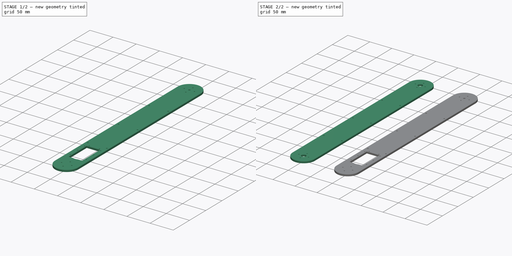
[diagram: build sequence overview — one tinted view per stage of 2, left to right]
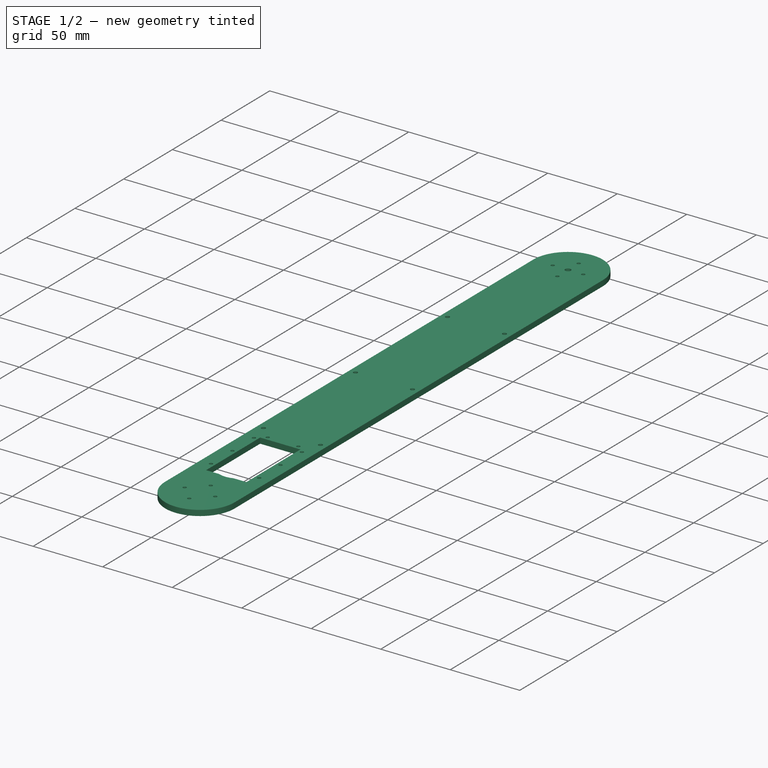
[diagram: stage 1 of 2 — iso view after this stage's code; geometry added in this stage tinted green]
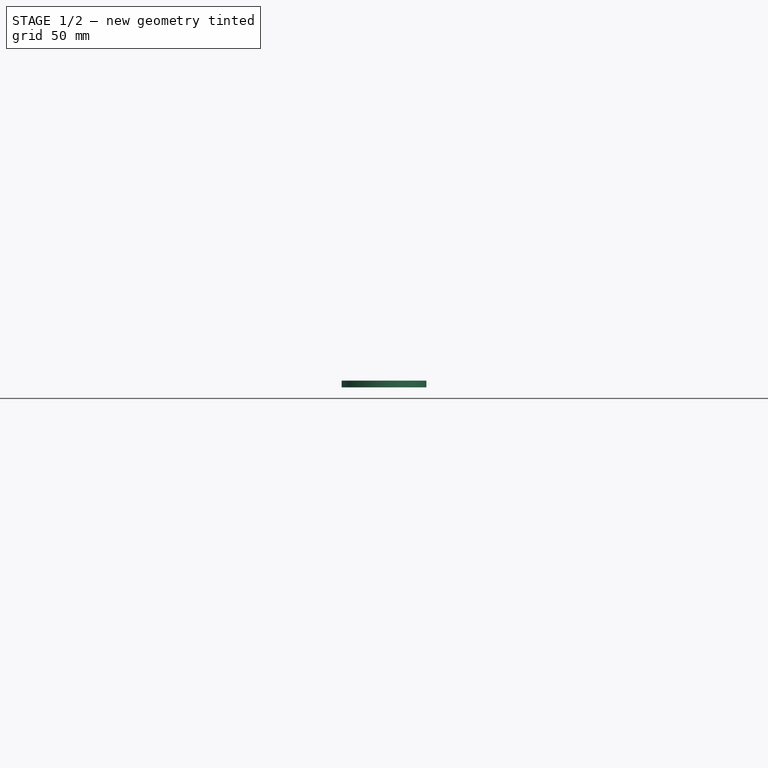
[diagram: stage 1 of 2 — front view after this stage's code; geometry added in this stage tinted green]
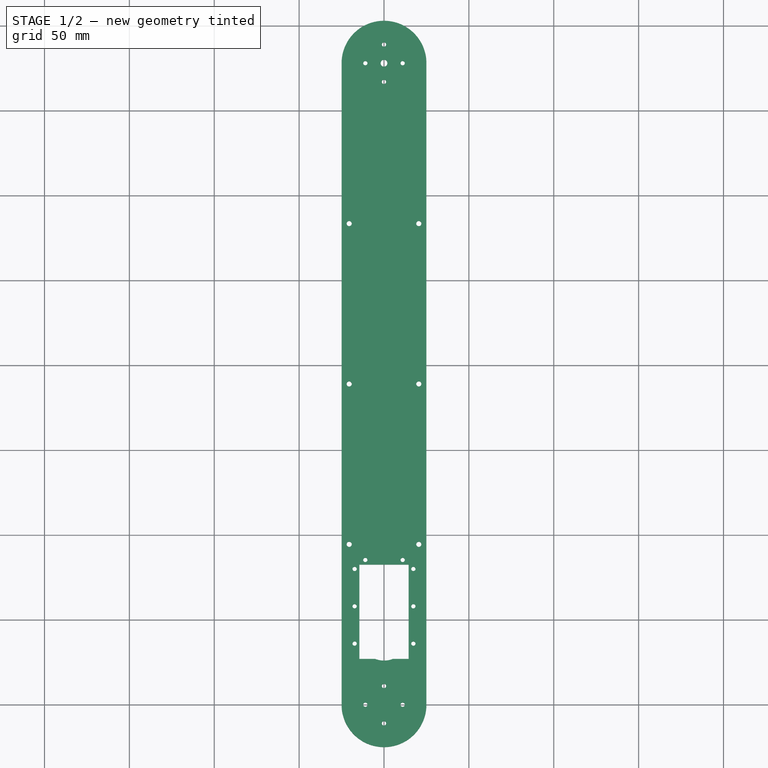
[diagram: stage 1 of 2 — top view after this stage's code; geometry added in this stage tinted green]
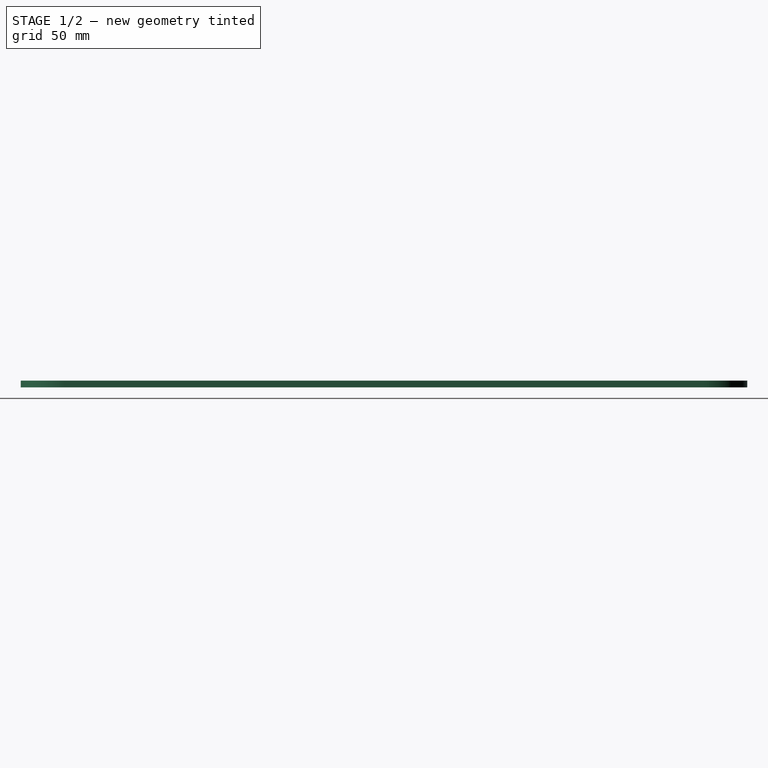
[diagram: stage 1 of 2 — right view after this stage's code; geometry added in this stage tinted green]
FCSTD DOCUMENT  (FreeCAD 1.0R39109 (Git))
Label: arm2
License: All rights reserved
LicenseURL: https://en.wikipedia.org/wiki/All_rights_reserved
objects: Sketcher::SketchObject×6, PartDesign::Body×3, PartDesign::Pad×2, PartDesign::Pocket×2, App::Part×1
note: 27 computed .brp shape members not serialized (recipe doc carries the construction recipe); baked Part::Feature solids carry a one-line shape summary decoded from their .brp

FEATURE [Sketcher::SketchObject] Sketch
  ArcFitTolerance = 1e-06
  AttachmentSupport = -> [XY_Plane]
  FullyConstrained = false
  MakeInternals = false
  MapMode = 5
  sketch-geometry (59):
    g0: LineSegment [constr] StartX=340.101 StartY=0 StartZ=0 EndX=340.101 EndY=-40 EndZ=0
    g1: Circle [constr] CenterX=340.101 CenterY=-20 CenterZ=0 NormalX=0 NormalY=0 NormalZ=1 AngleXU=0 Radius=14
    g2: LineSegment [constr] StartX=340.101 StartY=-20 StartZ=0 EndX=365.101 EndY=-20 EndZ=0
    g3: LineSegment [constr] StartX=340.101 StartY=-20 StartZ=0 EndX=315.101 EndY=-20 EndZ=0
    g4: ArcOfCircle CenterX=340.101 CenterY=-20 CenterZ=0 NormalX=0 NormalY=0 NormalZ=1 AngleXU=0 Radius=25 StartAngle=3.14159 EndAngle=6.28319
    g5: Circle CenterX=340.101 CenterY=-20 CenterZ=0 NormalX=0 NormalY=0 NormalZ=1 AngleXU=0 Radius=5
    g6: Circle CenterX=340.101 CenterY=-20 CenterZ=0 NormalX=0 NormalY=0 NormalZ=1 AngleXU=0 Radius=2
    g7: LineSegment [constr] StartX=120.063 StartY=3.7e-05 StartZ=0 EndX=120.063 EndY=-40 EndZ=0
    g8: Circle [constr] CenterX=120.063 CenterY=-20 CenterZ=0 NormalX=0 NormalY=0 NormalZ=1 AngleXU=0 Radius=14
    g9: LineSegment [constr] StartX=120.063 StartY=-20 StartZ=0 EndX=95.0632 EndY=-20 EndZ=0
    g10: ArcOfCircle CenterX=120.063 CenterY=-20 CenterZ=0 NormalX=0 NormalY=0 NormalZ=1 AngleXU=0 Radius=25 StartAngle=3.14159 EndAngle=6.28319
    g11: LineSegment [constr] StartX=120.063 StartY=-20 StartZ=0 EndX=145.063 EndY=-20 EndZ=0
    g12: Circle [constr] CenterX=120.063 CenterY=-20.0003 CenterZ=0 NormalX=0 NormalY=0 NormalZ=1 AngleXU=0 Radius=11
    g13: Circle CenterX=131.063 CenterY=-20 CenterZ=0 NormalX=0 NormalY=0 NormalZ=1 AngleXU=0 Radius=1.25
    g14: Circle CenterX=120.063 CenterY=-9.00027 CenterZ=0 NormalX=0 NormalY=0 NormalZ=1 AngleXU=0 Radius=1.25
    g15: Circle CenterX=109.063 CenterY=-20 CenterZ=0 NormalX=0 NormalY=0 NormalZ=1 AngleXU=0 Radius=1.25
    g16: Circle CenterX=120.063 CenterY=-30.9997 CenterZ=0 NormalX=0 NormalY=0 NormalZ=1 AngleXU=0 Radius=1.25
    g17: Circle CenterX=351.101 CenterY=-20 CenterZ=0 NormalX=0 NormalY=0 NormalZ=1 AngleXU=0 Radius=1.25
    g18: Circle [constr] CenterX=340.101 CenterY=-19.9997 CenterZ=0 NormalX=0 NormalY=0 NormalZ=1 AngleXU=0 Radius=11
    g19: Circle CenterX=340.101 CenterY=-9.0003 CenterZ=0 NormalX=0 NormalY=0 NormalZ=1 AngleXU=0 Radius=1.25
    g20: Circle CenterX=329.101 CenterY=-20 CenterZ=0 NormalX=0 NormalY=0 NormalZ=1 AngleXU=0 Radius=1.25
    g21: Circle CenterX=340.101 CenterY=-30.9997 CenterZ=0 NormalX=0 NormalY=0 NormalZ=1 AngleXU=0 Radius=1.25
    g22: Circle [constr] CenterX=120.063 CenterY=-20 CenterZ=0 NormalX=0 NormalY=0 NormalZ=1 AngleXU=0 Radius=25
    g23: LineSegment [constr] StartX=120.063 StartY=3.7e-05 StartZ=0 EndX=120.063 EndY=5.00004 EndZ=0
    g24: Circle CenterX=120.063 CenterY=368 CenterZ=0 NormalX=0 NormalY=0 NormalZ=1 AngleXU=0 Radius=5
    g25: Circle CenterX=120.063 CenterY=368 CenterZ=0 NormalX=0 NormalY=0 NormalZ=1 AngleXU=0 Radius=2
    g26: LineSegment [constr] StartX=99.9621 StartY=78.1 StartZ=0 EndX=140.162 EndY=78.1 EndZ=0
    g27: LineSegment [constr] StartX=140.162 StartY=78.1 StartZ=0 EndX=140.162 EndY=17 EndZ=0
    g28: LineSegment [constr] StartX=120.062 StartY=72.5 StartZ=0 EndX=134.562 EndY=72.5 EndZ=0
    g29: LineSegment StartX=134.562 StartY=72.5 StartZ=0 EndX=105.562 EndY=72.5 EndZ=0
    g30: LineSegment StartX=134.562 StartY=72.5 StartZ=0 EndX=134.562 EndY=17 EndZ=0
    g31: Circle CenterX=131.062 CenterY=75.3 CenterZ=0 NormalX=0 NormalY=0 NormalZ=1 AngleXU=0 Radius=1.25
    g32: Circle CenterX=137.362 CenterY=48 CenterZ=0 NormalX=0 NormalY=0 NormalZ=1 AngleXU=0 Radius=1.25
    g33: Circle CenterX=137.362 CenterY=70 CenterZ=0 NormalX=0 NormalY=0 NormalZ=1 AngleXU=0 Radius=1.25
    g34: LineSegment [constr] StartX=140.162 StartY=17 StartZ=0 EndX=134.562 EndY=17 EndZ=0
    g35: Circle CenterX=137.362 CenterY=26 CenterZ=0 NormalX=0 NormalY=0 NormalZ=1 AngleXU=0 Radius=1.25
    g36: LineSegment StartX=125.258 StartY=17 StartZ=0 EndX=134.562 EndY=17 EndZ=0
    g37: ArcOfCircle CenterX=120.062 CenterY=30 CenterZ=0 NormalX=0 NormalY=0 NormalZ=1 AngleXU=0 Radius=14 StartAngle=4.33214 EndAngle=5.09264
    g38: Circle [constr] CenterX=120.062 CenterY=30 CenterZ=0 NormalX=0 NormalY=0 NormalZ=1 AngleXU=0 Radius=14
    g39: LineSegment StartX=105.562 StartY=17 StartZ=0 EndX=114.866 EndY=17 EndZ=0
    g40: LineSegment StartX=105.562 StartY=72.5 StartZ=0 EndX=105.562 EndY=17 EndZ=0
    g41: LineSegment [constr] StartX=99.9621 StartY=17 StartZ=0 EndX=105.562 EndY=17 EndZ=0
    g42: LineSegment [constr] StartX=99.9621 StartY=17 StartZ=0 EndX=99.9621 EndY=78.1 EndZ=0
    g43: Circle CenterX=102.762 CenterY=26 CenterZ=0 NormalX=0 NormalY=0 NormalZ=1 AngleXU=0 Radius=1.25
    g44: Circle CenterX=102.762 CenterY=48 CenterZ=0 NormalX=0 NormalY=0 NormalZ=1 AngleXU=0 Radius=1.25
    g45: Circle CenterX=102.762 CenterY=70 CenterZ=0 NormalX=0 NormalY=0 NormalZ=1 AngleXU=0 Radius=1.25
    g46: Circle CenterX=109.062 CenterY=75.3 CenterZ=0 NormalX=0 NormalY=0 NormalZ=1 AngleXU=0 Radius=1.25
    g47: Circle CenterX=340.101 CenterY=368 CenterZ=0 NormalX=0 NormalY=0 NormalZ=1 AngleXU=0 Radius=5
    g48: Circle CenterX=340.101 CenterY=368 CenterZ=0 NormalX=0 NormalY=0 NormalZ=1 AngleXU=0 Radius=2
    g49: ArcOfCircle CenterX=340.101 CenterY=368 CenterZ=0 NormalX=0 NormalY=0 NormalZ=1 AngleXU=0 Radius=25 StartAngle=0 EndAngle=3.14159
    g50: LineSegment [constr] StartX=340.101 StartY=368 StartZ=0 EndX=315.101 EndY=368 EndZ=0
    g51: LineSegment [constr] StartX=340.101 StartY=368 StartZ=0 EndX=365.101 EndY=368 EndZ=0
    g52: LineSegment StartX=315.101 StartY=-20 StartZ=0 EndX=315.101 EndY=368 EndZ=0
    g53: LineSegment StartX=365.101 StartY=-20 StartZ=0 EndX=365.101 EndY=368 EndZ=0
    g54: ArcOfCircle CenterX=120.063 CenterY=368 CenterZ=0 NormalX=0 NormalY=0 NormalZ=1 AngleXU=0 Radius=25 StartAngle=0 EndAngle=3.14159
    g55: LineSegment [constr] StartX=120.063 StartY=368 StartZ=0 EndX=95.0632 EndY=368 EndZ=0
    g56: LineSegment [constr] StartX=120.063 StartY=368 StartZ=0 EndX=145.063 EndY=368 EndZ=0
    g57: LineSegment StartX=95.0632 StartY=-20 StartZ=0 EndX=95.0632 EndY=368 EndZ=0
    g58: LineSegment StartX=145.063 StartY=-20 StartZ=0 EndX=145.063 EndY=368 EndZ=0
  constraints (107):
    c: Vertical(g0)
    c: Diameter(g1) = 28
    c: Symmetric(g0,g0,g1)
    c: Coincident(g2,g1)
    c: Horizontal(g2)
    c: Coincident(g3,g1)
    c: PointOnObject(g3,g4)
    c: Horizontal(g3)
    c: Coincident(g4,g2)
    c: PointOnObject(g4,g3)
    c: Diameter(g5) = 10
    c: Coincident(g5,g4)
    c: Diameter(g6) = 4
    c: Coincident(g6,g1)
    c: Vertical(g7)
    c: Diameter(g8) = 28
    c: Symmetric(g7,g7,g8)
    c: Coincident(g9,g8)
    c: PointOnObject(g9,g10)
    c: Horizontal(g9)
    c: PointOnObject(g10,g9)
    c: Horizontal(g11)
    c: Diameter(g12) = 22
    c: Diameter(g14) = 2.5
    c: Diameter(g15) = 2.5
    c: Diameter(g16) = 2.5
    c: Diameter(g13) = 2.5
    c: Diameter(g18) = 22
    c: Diameter(g19) = 2.5
    c: Diameter(g20) = 2.5
    c: Diameter(g21) = 2.5
    c: Diameter(g17) = 2.5
    c: Coincident(g22,g10)
    c: Equal(g22,g10)
    c: Coincident(g23,g7)
    c: PointOnObject(g23,g22)
    c: Vertical(g23)
    c: Diameter(g25) = 4
    c: Coincident(g26,g27)
    c: Coincident(g42,g26)
    c: Horizontal(g26)
    c: Vertical(g27)
    c: Vertical(g42)
    c: Distance(g27,g42) = 40.2
    c: Distance(g26,g42) = 61.1
    c: Diameter(g37) = 28
    c: Horizontal(g28)
    c: Coincident(g29,g28)
    c: Horizontal(g29)
    c: Coincident(g40,g29)
    c: Vertical(g40)
    c: Coincident(g30,g28)
    c: Vertical(g30)
    c: Diameter(g31) = 2.5
    c: Equal(g31,g46)
    c: Equal(g31,g35)
    c: Equal(g31,g43)
    c: Equal(g31,g44)
    c: Equal(g31,g45)
    c: Equal(g31,g33)
    c: Equal(g31,g32)
    c: Coincident(g38,g37)
    c: PointOnObject(g37,g38)
    c: Coincident(g34,g27)
    c: Coincident(g34,g30)
    c: Horizontal(g34)
    c: Coincident(g36,g37)
    c: Coincident(g36,g30)
    c: Horizontal(g36)
    c: Coincident(g39,g40)
    c: Coincident(g39,g37)
    c: Horizontal(g39)
    c: Horizontal(g41)
    c: Diameter(g48) = 4
    c: DistanceY(g18,g47) = 388
    c: Diameter(g49) = 50
    c: Coincident(g49,g47)
    c: Coincident(g50,g48)
    c: Horizontal(g50)
    c: Coincident(g51,g47)
    c: Horizontal(g51)
    c: Coincident(g49,g50)
    c: Coincident(g49,g51)
    c: Coincident(g52,g4)
    c: Coincident(g52,g49)
    c: Vertical(g52)
    c: Coincident(g53,g2)
    c: Coincident(g53,g49)
    c: Vertical(g53)
    c: Diameter(g54) = 50
    c: Coincident(g54,g24)
    c: Coincident(g55,g25)
    c: Horizontal(g55)
    c: Coincident(g56,g24)
    c: Horizontal(g56)
    c: Coincident(g54,g55)
    c: Coincident(g54,g56)
    c: Coincident(g57,g10)
    c: Coincident(g57,g54)
    c: Vertical(g57)
    c: Tangent(g57,g22)
    c: Coincident(g58,g10)
    c: Coincident(g58,g54)
    c: Vertical(g58)
    c: Tangent(g58,g22)
    c: DistanceY(g11,g24) = 388
    c: DistanceY(g37,g24) = 338
FEATURE [PartDesign::Body] Body
  AllowCompound = false
  Group = -> [Sketch]
  Origin = -> Origin
FEATURE [Sketcher::SketchObject] Sketch001
  ArcFitTolerance = 1e-06
  AttachmentSupport = -> [XY_Plane002]
  FullyConstrained = false
  MakeInternals = false
  MapMode = 5
  sketch-geometry (47):
    g0: LineSegment [constr] StartX=120.063 StartY=3.7e-05 StartZ=0 EndX=120.063 EndY=5.00004 EndZ=0
    g1: LineSegment [constr] StartX=0 StartY=0 StartZ=0 EndX=100 EndY=0 EndZ=0
    g2: Circle CenterX=100 CenterY=378 CenterZ=0 NormalX=0 NormalY=0 NormalZ=1 AngleXU=0 Radius=2
    g3: LineSegment [constr] StartX=79.8989 StartY=88.1 StartZ=0 EndX=120.099 EndY=88.1 EndZ=0
    g4: LineSegment [constr] StartX=120.099 StartY=88.1 StartZ=0 EndX=120.099 EndY=27 EndZ=0
    g5: LineSegment [constr] StartX=99.9989 StartY=82.5 StartZ=0 EndX=114.499 EndY=82.5 EndZ=0
    g6: LineSegment StartX=114.499 StartY=82.5 StartZ=0 EndX=85.4989 EndY=82.5 EndZ=0
    g7: LineSegment StartX=114.499 StartY=82.5 StartZ=0 EndX=114.499 EndY=27 EndZ=0
    g8: Circle CenterX=110.999 CenterY=85.3 CenterZ=0 NormalX=0 NormalY=0 NormalZ=1 AngleXU=0 Radius=1.25
    g9: Circle CenterX=117.299 CenterY=58 CenterZ=0 NormalX=0 NormalY=0 NormalZ=1 AngleXU=0 Radius=1.25
    g10: Circle CenterX=117.299 CenterY=80 CenterZ=0 NormalX=0 NormalY=0 NormalZ=1 AngleXU=0 Radius=1.25
    g11: Circle [constr] CenterX=99.9989 CenterY=40 CenterZ=0 NormalX=0 NormalY=0 NormalZ=1 AngleXU=0 Radius=14
    g12: LineSegment StartX=85.4989 StartY=82.5 StartZ=0 EndX=85.4989 EndY=27 EndZ=0
    g13: LineSegment [constr] StartX=79.8989 StartY=27 StartZ=0 EndX=79.8989 EndY=88.1 EndZ=0
    g14: Circle CenterX=82.6989 CenterY=58 CenterZ=0 NormalX=0 NormalY=0 NormalZ=1 AngleXU=0 Radius=1.25
    g15: Circle CenterX=82.6989 CenterY=80 CenterZ=0 NormalX=0 NormalY=0 NormalZ=1 AngleXU=0 Radius=1.25
    g16: Circle CenterX=88.9989 CenterY=85.3 CenterZ=0 NormalX=0 NormalY=0 NormalZ=1 AngleXU=0 Radius=1.25
    g17: ArcOfCircle CenterX=100 CenterY=378 CenterZ=0 NormalX=0 NormalY=0 NormalZ=1 AngleXU=0 Radius=25 StartAngle=0 EndAngle=3.14159
    g18: LineSegment [constr] StartX=100 StartY=378 StartZ=0 EndX=75 EndY=378 EndZ=0
    g19: LineSegment [constr] StartX=100 StartY=378 StartZ=0 EndX=125 EndY=378 EndZ=0
    g20: Circle [constr] CenterX=100 CenterY=378 CenterZ=0 NormalX=0 NormalY=0 NormalZ=1 AngleXU=0 Radius=14
    g21: LineSegment [constr] StartX=100 StartY=378 StartZ=0 EndX=125 EndY=378 EndZ=0
    g22: Circle [constr] CenterX=100 CenterY=378 CenterZ=0 NormalX=0 NormalY=0 NormalZ=1 AngleXU=0 Radius=11
    g23: Circle CenterX=111 CenterY=378 CenterZ=0 NormalX=0 NormalY=0 NormalZ=1 AngleXU=0 Radius=1.25
    g24: Circle CenterX=100 CenterY=389 CenterZ=0 NormalX=0 NormalY=0 NormalZ=1 AngleXU=0 Radius=1.25
    g25: Circle CenterX=100 CenterY=367 CenterZ=0 NormalX=0 NormalY=0 NormalZ=1 AngleXU=0 Radius=1.25
    g26: Circle CenterX=89.0003 CenterY=378 CenterZ=0 NormalX=0 NormalY=0 NormalZ=1 AngleXU=0 Radius=1.25
    g27: LineSegment StartX=75 StartY=0 StartZ=0 EndX=75 EndY=378 EndZ=0
    g28: LineSegment StartX=125 StartY=-8.67949e-06 StartZ=0 EndX=125 EndY=378 EndZ=0
    g29: LineSegment [constr] StartX=100 StartY=20 StartZ=0 EndX=100 EndY=-20 EndZ=0
    g30: Circle [constr] CenterX=100 CenterY=0 CenterZ=0 NormalX=0 NormalY=0 NormalZ=1 AngleXU=0 Radius=14
    g31: LineSegment [constr] StartX=100 StartY=0 StartZ=0 EndX=75 EndY=0 EndZ=0
    g32: ArcOfCircle CenterX=100 CenterY=-1e-06 CenterZ=0 NormalX=0 NormalY=0 NormalZ=1 AngleXU=0 Radius=25 StartAngle=3.14159 EndAngle=6.28318
    g33: LineSegment [constr] StartX=100 StartY=0 StartZ=0 EndX=125 EndY=0 EndZ=0
    g34: Circle [constr] CenterX=100 CenterY=-0.000303 CenterZ=0 NormalX=0 NormalY=0 NormalZ=1 AngleXU=0 Radius=11
    g35: Circle CenterX=111 CenterY=0 CenterZ=0 NormalX=0 NormalY=0 NormalZ=1 AngleXU=0 Radius=1.25
    g36: Circle CenterX=100 CenterY=10.9997 CenterZ=0 NormalX=0 NormalY=0 NormalZ=1 AngleXU=0 Radius=1.25
    g37: Circle CenterX=89.0003 CenterY=0 CenterZ=0 NormalX=0 NormalY=0 NormalZ=1 AngleXU=0 Radius=1.25
    g38: Circle CenterX=100 CenterY=-10.9997 CenterZ=0 NormalX=0 NormalY=0 NormalZ=1 AngleXU=0 Radius=1.25
    g39: Circle [constr] CenterX=100 CenterY=-1e-06 CenterZ=0 NormalX=0 NormalY=0 NormalZ=1 AngleXU=0 Radius=25
    g40: LineSegment [constr] StartX=120.099 StartY=27 StartZ=0 EndX=114.499 EndY=27 EndZ=0
    g41: LineSegment StartX=105.195 StartY=27 StartZ=0 EndX=114.499 EndY=27 EndZ=0
    g42: LineSegment StartX=85.4989 StartY=27 StartZ=0 EndX=94.8028 EndY=27 EndZ=0
    g43: LineSegment [constr] StartX=79.8989 StartY=27 StartZ=0 EndX=85.4989 EndY=27 EndZ=0
    g44: Circle CenterX=82.6989 CenterY=36 CenterZ=0 NormalX=0 NormalY=0 NormalZ=1 AngleXU=0 Radius=1.25
    g45: Circle CenterX=117.299 CenterY=36 CenterZ=0 NormalX=0 NormalY=0 NormalZ=1 AngleXU=0 Radius=1.25
    g46: ArcOfCircle CenterX=99.9989 CenterY=40 CenterZ=0 NormalX=0 NormalY=0 NormalZ=1 AngleXU=0 Radius=14 StartAngle=4.33214 EndAngle=5.09264
  constraints (74):
    c: Vertical(g0)
    c: Distance(g1) = 100
    c: Coincident(g1,g-1)
    c: PointOnObject(g1,g-1)
    c: Vertical(g29)
    c: Diameter(g30) = 28
    c: Symmetric(g29,g29,g30)
    c: Coincident(g31,g30)
    c: PointOnObject(g31,g32)
    c: Horizontal(g31)
    c: PointOnObject(g32,g31)
    c: Horizontal(g33)
    c: Diameter(g34) = 22
    c: Diameter(g36) = 2.5
    c: Diameter(g37) = 2.5
    c: Diameter(g38) = 2.5
    c: Diameter(g35) = 2.5
    c: Coincident(g39,g32)
    c: Equal(g39,g32)
    c: Diameter(g2) = 4
    c: Coincident(g3,g4)
    c: Coincident(g13,g3)
    c: Horizontal(g3)
    c: Vertical(g4)
    c: Vertical(g13)
    c: Distance(g4,g13) = 40.2
    c: Distance(g3,g13) = 61.1
    c: Diameter(g46) = 28
    c: Horizontal(g5)
    c: Coincident(g6,g5)
    c: Horizontal(g6)
    c: Coincident(g12,g6)
    c: Vertical(g12)
    c: Coincident(g7,g5)
    c: Vertical(g7)
    c: Diameter(g8) = 2.5
    c: Equal(g8,g16)
    c: Equal(g8,g45)
    c: Equal(g8,g44)
    c: Equal(g8,g14)
    c: Equal(g8,g15)
    c: Equal(g8,g10)
    c: Equal(g8,g9)
    c: Coincident(g11,g46)
    c: PointOnObject(g46,g11)
    c: Coincident(g40,g4)
    c: Coincident(g40,g7)
    c: Horizontal(g40)
    c: Coincident(g41,g46)
    c: Coincident(g41,g7)
    c: Horizontal(g41)
    c: Coincident(g42,g12)
    c: Coincident(g42,g46)
    c: Horizontal(g42)
    c: Horizontal(g43)
    c: Diameter(g17) = 50
    c: Coincident(g18,g2)
    c: Horizontal(g18)
    c: Horizontal(g19)
    c: Coincident(g17,g18)
    c: Coincident(g17,g19)
    c: Diameter(g20) = 28
    c: Horizontal(g21)
    c: Diameter(g22) = 22
    c: Diameter(g24) = 2.5
    c: Diameter(g26) = 2.5
    c: Diameter(g25) = 2.5
    c: Diameter(g23) = 2.5
    c: Coincident(g27,g32)
    c: Coincident(g27,g17)
    c: Vertical(g27)
    c: Coincident(g28,g32)
    c: Coincident(g28,g21)
    c: Vertical(g28)
FEATURE [Sketcher::SketchObject] Sketch002
  ArcFitTolerance = 1e-06
  AttachmentSupport = -> [XY_Plane003]
  FullyConstrained = false
  MakeInternals = false
  MapMode = 5
  sketch-geometry (26):
    g0: Circle [constr] CenterX=340.101 CenterY=-20 CenterZ=0 NormalX=0 NormalY=0 NormalZ=1 AngleXU=0 Radius=14
    g1: Circle CenterX=340.101 CenterY=-19.9925 CenterZ=0 NormalX=0 NormalY=0 NormalZ=1 AngleXU=0 Radius=5
    g2: Circle CenterX=340.101 CenterY=-20 CenterZ=0 NormalX=0 NormalY=0 NormalZ=1 AngleXU=0 Radius=2
    g3: Circle CenterX=351.101 CenterY=-20 CenterZ=0 NormalX=0 NormalY=0 NormalZ=1 AngleXU=0 Radius=1.25
    g4: Circle [constr] CenterX=340.101 CenterY=-19.9997 CenterZ=0 NormalX=0 NormalY=0 NormalZ=1 AngleXU=0 Radius=11
    g5: Circle CenterX=340.101 CenterY=-9.0003 CenterZ=0 NormalX=0 NormalY=0 NormalZ=1 AngleXU=0 Radius=1.25
    g6: Circle CenterX=329.101 CenterY=-20 CenterZ=0 NormalX=0 NormalY=0 NormalZ=1 AngleXU=0 Radius=1.25
    g7: Circle CenterX=340.101 CenterY=-30.9997 CenterZ=0 NormalX=0 NormalY=0 NormalZ=1 AngleXU=0 Radius=1.25
    g8: Circle CenterX=340.101 CenterY=358.008 CenterZ=0 NormalX=0 NormalY=0 NormalZ=1 AngleXU=0 Radius=5
    g9: Circle CenterX=340.101 CenterY=358.008 CenterZ=0 NormalX=0 NormalY=0 NormalZ=1 AngleXU=0 Radius=2
    g10: LineSegment [constr] StartX=340.101 StartY=358.008 StartZ=0 EndX=365.101 EndY=358.008 EndZ=0
    g11: Circle [constr] CenterX=340.101 CenterY=358 CenterZ=0 NormalX=0 NormalY=0 NormalZ=1 AngleXU=0 Radius=14
    g12: LineSegment [constr] StartX=340.101 StartY=358 StartZ=0 EndX=365.101 EndY=358 EndZ=0
    g13: Circle CenterX=351.101 CenterY=358 CenterZ=0 NormalX=0 NormalY=0 NormalZ=1 AngleXU=0 Radius=1.25
    g14: Circle [constr] CenterX=340.101 CenterY=358.008 CenterZ=0 NormalX=0 NormalY=0 NormalZ=1 AngleXU=0 Radius=11
    g15: Circle CenterX=340.101 CenterY=369 CenterZ=0 NormalX=0 NormalY=0 NormalZ=1 AngleXU=0 Radius=1.25
    g16: Circle CenterX=329.101 CenterY=358 CenterZ=0 NormalX=0 NormalY=0 NormalZ=1 AngleXU=0 Radius=1.25
    g17: Circle CenterX=340.101 CenterY=347 CenterZ=0 NormalX=0 NormalY=0 NormalZ=1 AngleXU=0 Radius=1.25
    g18: ArcOfCircle CenterX=340.101 CenterY=-19.9925 CenterZ=0 NormalX=0 NormalY=0 NormalZ=1 AngleXU=0 Radius=25 StartAngle=3.1413 EndAngle=6.28347
    g19: ArcOfCircle CenterX=340.101 CenterY=358.008 CenterZ=0 NormalX=0 NormalY=0 NormalZ=1 AngleXU=0 Radius=25 StartAngle=6.28288 EndAngle=9.42478
    g20: LineSegment [constr] StartX=340.101 StartY=-19.9997 StartZ=0 EndX=315.101 EndY=-19.9997 EndZ=0
    g21: LineSegment [constr] StartX=315.101 StartY=-19.9997 StartZ=0 EndX=365.101 EndY=-19.9997 EndZ=0
    g22: LineSegment [constr] StartX=340.101 StartY=358.008 StartZ=0 EndX=315.101 EndY=358.008 EndZ=0
    g23: LineSegment [constr] StartX=315.101 StartY=358.008 StartZ=0 EndX=365.101 EndY=358.008 EndZ=0
    g24: LineSegment StartX=315.101 StartY=-19.9997 StartZ=0 EndX=315.101 EndY=358.008 EndZ=0
    g25: LineSegment StartX=365.101 StartY=358 StartZ=0 EndX=365.101 EndY=-19.9997 EndZ=0
  constraints (45):
    c: Diameter(g0) = 28
    c: Diameter(g1) = 10
    c: Diameter(g2) = 4
    c: Coincident(g2,g0)
    c: Diameter(g5) = 2.5
    c: Diameter(g6) = 2.5
    c: Diameter(g7) = 2.5
    c: Diameter(g3) = 2.5
    c: Diameter(g9) = 4
    c: Coincident(g10,g8)
    c: Horizontal(g10)
    c: Coincident(g12,g11)
    c: Horizontal(g12)
    c: Diameter(g14) = 22
    c: Diameter(g15) = 2.5
    c: Diameter(g16) = 2.5
    c: Diameter(g17) = 2.5
    c: Diameter(g13) = 2.5
    c: DistanceY(g1,g9) = 378
    c: Diameter(g18) = 50
    c: Coincident(g18,g1)
    c: Diameter(g19) = 50
    c: Coincident(g19,g9)
    c: Coincident(g20,g4)
    c: PointOnObject(g20,g18)
    c: Horizontal(g20)
    c: Coincident(g21,g20)
    c: PointOnObject(g21,g18)
    c: Horizontal(g21)
    c: Coincident(g22,g14)
    c: PointOnObject(g22,g19)
    c: Horizontal(g22)
    c: Coincident(g23,g22)
    c: Coincident(g23,g10)
    c: Horizontal(g23)
    c: Coincident(g24,g20)
    c: Coincident(g24,g22)
    c: Coincident(g25,g12)
    c: Coincident(g25,g21)
    c: Vertical(g25)
    c: Tangent(g19,g24) = 1.5708
    c: Coincident(g19,g12)
    c: PointOnObject(g18,g25)
    c: PointOnObject(g18,g24)
    c: Diameter(g4) = 22
FEATURE [PartDesign::Pad] Pad
  Direction = (0,0,1)
  Length = 4
  Length2 = 10
  Profile = -> Sketch001
  ReferenceAxis = -> Sketch001 [N_Axis]
  Refine = true
  Suppressed = false
  Type = 0
FEATURE [PartDesign::Body] Body002
  AllowCompound = false
  Group = -> [Sketch002,Sketch003,Pad001,Sketch005,Pocket001]
  Origin = -> Origin003
  Tip = -> Pocket001
FEATURE [Sketcher::SketchObject] Sketch006
  ArcFitTolerance = 1e-06
  AttachmentSupport = -> [Pad]
  ExternalGeometry = -> [Pad]
  FullyConstrained = true
  MakeInternals = false
  MapMode = 5
  Placement = pos=(0,0,4) rot=(0,0,1;0rad)
  sketch-geometry (21):
    g0: LineSegment [constr] StartX=75 StartY=378 StartZ=0 EndX=79.5 EndY=378 EndZ=0
    g1: LineSegment [constr] StartX=125 StartY=378 StartZ=0 EndX=120.5 EndY=378 EndZ=0
    g2: LineSegment [constr] StartX=125 StartY=189 StartZ=0 EndX=75 EndY=189 EndZ=0
    g3: LineSegment [constr] StartX=125 StartY=378 StartZ=0 EndX=125 EndY=189 EndZ=0
    g4: LineSegment [constr] StartX=75 StartY=378 StartZ=0 EndX=75 EndY=189 EndZ=0
    g5: LineSegment [constr] StartX=75 StartY=189 StartZ=0 EndX=75 EndY=0 EndZ=0
    g6: LineSegment [constr] StartX=125 StartY=189 StartZ=0 EndX=125 EndY=-8.67949e-06 EndZ=0
    g7: LineSegment [constr] StartX=75 StartY=283.5 StartZ=0 EndX=125 EndY=283.5 EndZ=0
    g8: LineSegment [constr] StartX=75 StartY=94.5 StartZ=0 EndX=125 EndY=94.5 EndZ=0
    g9: LineSegment [constr] StartX=79.5 StartY=378 StartZ=0 EndX=79.5 EndY=283.5 EndZ=0
    g10: LineSegment [constr] StartX=79.5 StartY=283.5 StartZ=0 EndX=79.5 EndY=189 EndZ=0
    g11: LineSegment [constr] StartX=79.5 StartY=189 StartZ=0 EndX=79.5 EndY=94.5 EndZ=0
    g12: LineSegment [constr] StartX=120.5 StartY=378 StartZ=0 EndX=120.5 EndY=283.5 EndZ=0
    g13: LineSegment [constr] StartX=120.5 StartY=283.5 StartZ=0 EndX=120.5 EndY=189 EndZ=0
    g14: LineSegment [constr] StartX=120.5 StartY=189 StartZ=0 EndX=120.5 EndY=94.5 EndZ=0
    g15: Circle CenterX=79.5 CenterY=189 CenterZ=0 NormalX=0 NormalY=0 NormalZ=1 AngleXU=0 Radius=1.5
    g16: Circle CenterX=120.5 CenterY=189 CenterZ=0 NormalX=0 NormalY=0 NormalZ=1 AngleXU=0 Radius=1.5
    g17: Circle CenterX=79.5 CenterY=283.5 CenterZ=0 NormalX=0 NormalY=0 NormalZ=1 AngleXU=0 Radius=1.5
    g18: Circle CenterX=120.5 CenterY=283.5 CenterZ=0 NormalX=0 NormalY=0 NormalZ=1 AngleXU=0 Radius=1.5
    g19: Circle CenterX=79.5 CenterY=94.5 CenterZ=0 NormalX=0 NormalY=0 NormalZ=1 AngleXU=0 Radius=1.5
    g20: Circle CenterX=120.5 CenterY=94.5 CenterZ=0 NormalX=0 NormalY=0 NormalZ=1 AngleXU=0 Radius=1.5
  constraints (47):
    c: Distance(g0) = 4.5
    c: Coincident(g0,g-3)
    c: Horizontal(g0)
    c: Coincident(g1,g-4)
    c: Horizontal(g1)
    c: Equal(g0,g1)
    c: Symmetric(g-4,g-4,g2)
    c: Symmetric(g-3,g-3,g2)
    c: Coincident(g3,g1)
    c: Coincident(g3,g2)
    c: Coincident(g4,g0)
    c: Coincident(g4,g2)
    c: Coincident(g5,g2)
    c: Coincident(g5,g-3)
    c: Coincident(g6,g2)
    c: Coincident(g6,g-4)
    c: Symmetric(g4,g4,g7)
    c: Symmetric(g3,g3,g7)
    c: Symmetric(g5,g5,g8)
    c: Symmetric(g6,g6,g8)
    c: Coincident(g9,g0)
    c: PointOnObject(g9,g7)
    c: Vertical(g9)
    c: Coincident(g10,g9)
    c: PointOnObject(g10,g2)
    c: Vertical(g10)
    c: Coincident(g11,g10)
    c: PointOnObject(g11,g8)
    c: Vertical(g11)
    c: Coincident(g12,g1)
    c: PointOnObject(g12,g7)
    c: Vertical(g12)
    c: Coincident(g13,g12)
    c: PointOnObject(g13,g2)
    c: Vertical(g13)
    c: Coincident(g14,g13)
    c: PointOnObject(g14,g8)
    c: Vertical(g14)
    c: Coincident(g15,g10)
    c: Coincident(g16,g13)
    c: Coincident(g17,g9)
    c: Coincident(g18,g12)
    c: Coincident(g19,g11)
    c: Coincident(g20,g14)
    c: Diameter(g15) = 3
    c: Equal(g15, g16-g19) x4
    c: Equal(g16,g20)
FEATURE [PartDesign::Pocket] Pocket
  BaseFeature = -> Pad
  Direction = (0,0,-1)
  Length = 10
  Length2 = 5
  Profile = -> Sketch006
  ReferenceAxis = -> Sketch006 [N_Axis]
  Refine = true
  Suppressed = false
  Type = 0
FEATURE [PartDesign::Body] Body001
  AllowCompound = false
  Group = -> [Sketch001,Pad,Sketch006,Pocket]
  Origin = -> Origin002
  Tip = -> Pocket
FEATURE [App::Part] Part
  Group = -> [Body001,Body002]
  Origin = -> Origin001
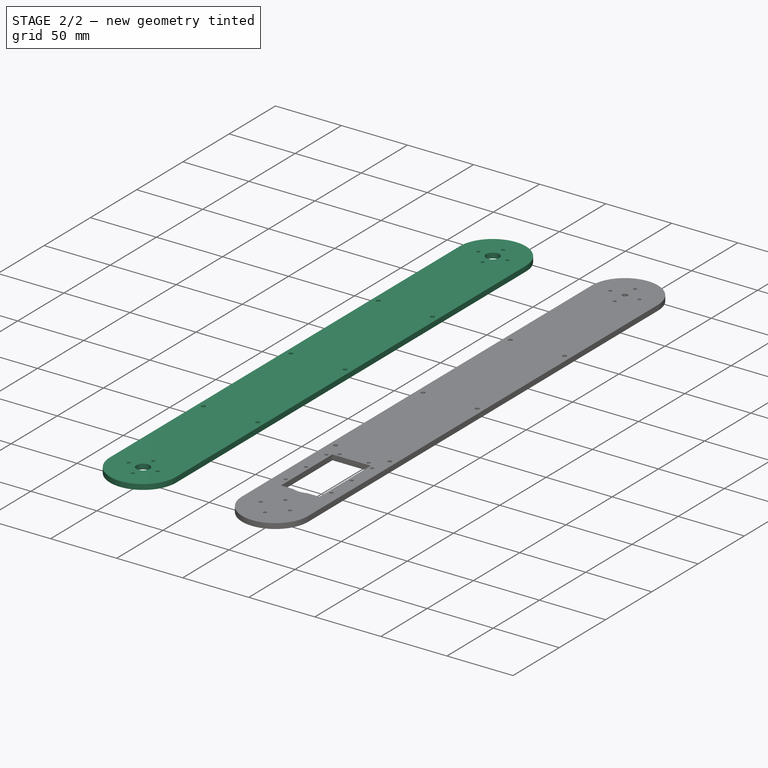
[diagram: stage 2 of 2 — iso view after this stage's code; geometry added in this stage tinted green]
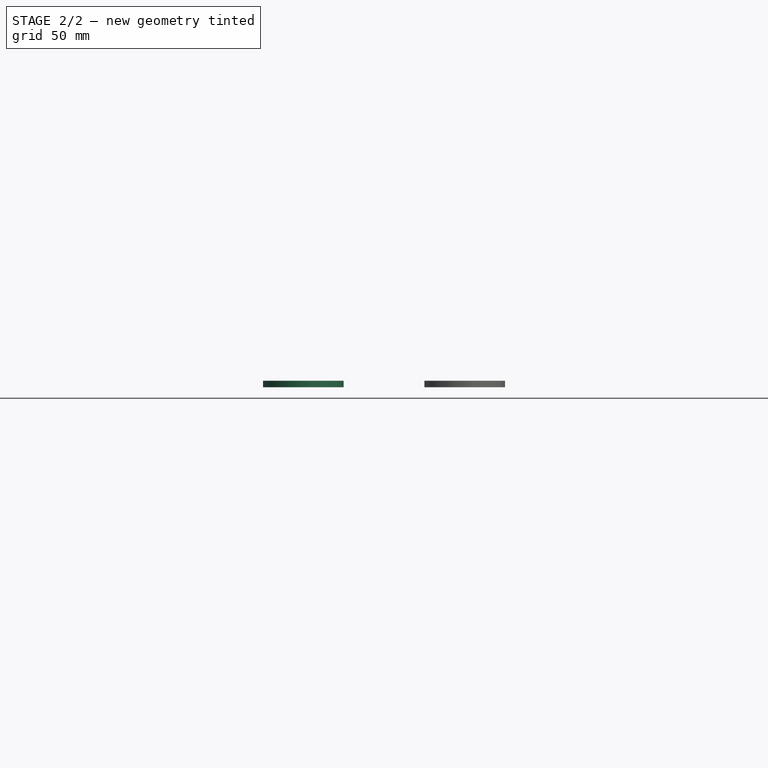
[diagram: stage 2 of 2 — front view after this stage's code; geometry added in this stage tinted green]
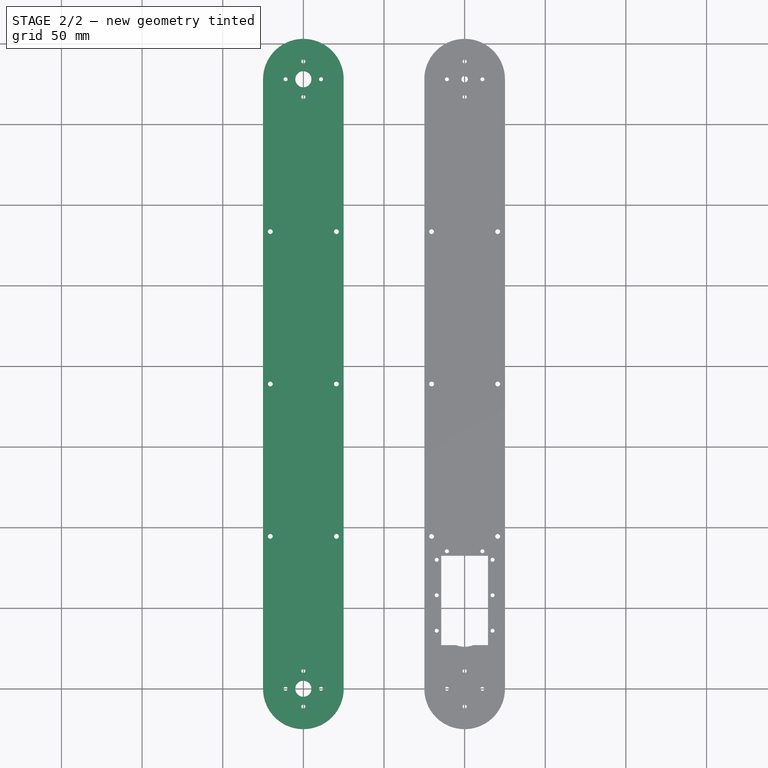
[diagram: stage 2 of 2 — top view after this stage's code; geometry added in this stage tinted green]
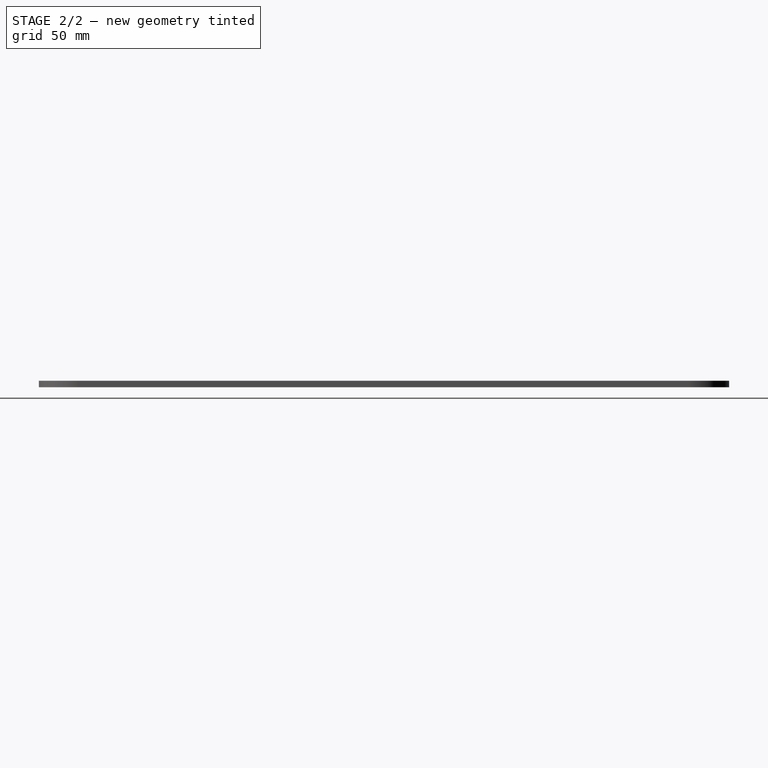
[diagram: stage 2 of 2 — right view after this stage's code; geometry added in this stage tinted green]
FEATURE [Sketcher::SketchObject] Sketch003
  ArcFitTolerance = 1e-06
  AttachmentSupport = -> [XY_Plane003]
  FullyConstrained = false
  MakeInternals = false
  MapMode = 5
  sketch-geometry (24):
    g0: ArcOfCircle CenterX=0 CenterY=0 CenterZ=0 NormalX=0 NormalY=0 NormalZ=1 AngleXU=0 Radius=25 StartAngle=3.14159 EndAngle=6.28319
    g1: LineSegment [constr] StartX=0 StartY=0 StartZ=0 EndX=0 EndY=378 EndZ=0
    g2: ArcOfCircle CenterX=0 CenterY=378 CenterZ=0 NormalX=0 NormalY=0 NormalZ=1 AngleXU=0 Radius=25 StartAngle=6.28319 EndAngle=9.42478
    g3: LineSegment StartX=-25 StartY=3.1e-15 StartZ=0 EndX=-25 EndY=378 EndZ=0
    g4: LineSegment StartX=25 StartY=-6.1e-15 StartZ=0 EndX=25 EndY=378 EndZ=0
    g5: Circle [constr] CenterX=0 CenterY=0 CenterZ=0 NormalX=0 NormalY=0 NormalZ=1 AngleXU=0 Radius=14
    g6: Circle [constr] CenterX=0 CenterY=0 CenterZ=0 NormalX=0 NormalY=0 NormalZ=1 AngleXU=0 Radius=11
    g7: Circle CenterX=0 CenterY=0 CenterZ=0 NormalX=0 NormalY=0 NormalZ=1 AngleXU=0 Radius=5
    g8: Circle CenterX=0 CenterY=0 CenterZ=0 NormalX=0 NormalY=0 NormalZ=1 AngleXU=0 Radius=2
    g9: LineSegment [constr] StartX=0 StartY=0 StartZ=0 EndX=0 EndY=11 EndZ=0
    g10: Circle CenterX=0 CenterY=11 CenterZ=0 NormalX=0 NormalY=0 NormalZ=1 AngleXU=0 Radius=1.25
    g11: Circle CenterX=-11 CenterY=0 CenterZ=0 NormalX=0 NormalY=0 NormalZ=1 AngleXU=0 Radius=1.25
    g12: Circle CenterX=0 CenterY=-11 CenterZ=0 NormalX=0 NormalY=0 NormalZ=1 AngleXU=0 Radius=1.25
    g13: Circle CenterX=11 CenterY=0 CenterZ=0 NormalX=0 NormalY=0 NormalZ=1 AngleXU=0 Radius=1.25
    g14: LineSegment [constr] StartX=0 StartY=378 StartZ=0 EndX=0 EndY=756 EndZ=0
    g15: Circle [constr] CenterX=0 CenterY=378 CenterZ=0 NormalX=0 NormalY=0 NormalZ=1 AngleXU=0 Radius=14
    g16: Circle [constr] CenterX=0 CenterY=378 CenterZ=0 NormalX=0 NormalY=0 NormalZ=1 AngleXU=0 Radius=11
    g17: Circle CenterX=0 CenterY=378 CenterZ=0 NormalX=0 NormalY=0 NormalZ=1 AngleXU=0 Radius=5
    g18: Circle CenterX=0 CenterY=378 CenterZ=0 NormalX=0 NormalY=0 NormalZ=1 AngleXU=0 Radius=2
    g19: LineSegment [constr] StartX=0 StartY=378 StartZ=0 EndX=0 EndY=389 EndZ=0
    g20: Circle CenterX=0 CenterY=389 CenterZ=0 NormalX=0 NormalY=0 NormalZ=1 AngleXU=0 Radius=1.25
    g21: Circle CenterX=-11 CenterY=378 CenterZ=0 NormalX=0 NormalY=0 NormalZ=1 AngleXU=0 Radius=1.25
    g22: Circle CenterX=0 CenterY=367 CenterZ=0 NormalX=0 NormalY=0 NormalZ=1 AngleXU=0 Radius=1.25
    g23: Circle CenterX=11 CenterY=378 CenterZ=0 NormalX=0 NormalY=0 NormalZ=1 AngleXU=0 Radius=1.25
  constraints (39):
    c: Diameter(g0) = 50
    c: Coincident(g0,g-1)
    c: Distance(g1) = 378
    c: Coincident(g1,g0)
    c: Vertical(g1)
    c: Diameter(g2) = 50
    c: Coincident(g2,g1)
    c: Diameter(g5) = 28
    c: Coincident(g5,g0)
    c: Diameter(g6) = 22
    c: Coincident(g6,g0)
    c: Diameter(g7) = 10
    c: Coincident(g7,g0)
    c: Diameter(g8) = 4
    c: Coincident(g8,g0)
    c: Coincident(g9,g0)
    c: PointOnObject(g9,g6)
    c: Vertical(g9)
    c: Coincident(g10,g9)
    c: Diameter(g10) = 2.5
    c: Equal(g10,g11)
    c: Equal(g10,g12)
    c: Equal(g10,g13)
    c: Vertical(g14)
    c: Equal(g5,g15)
    c: Equal(g6,g16)
    c: Equal(g7,g17)
    c: Equal(g8,g18)
    c: PointOnObject(g19,g16)
    c: Vertical(g19)
    c: Coincident(g20,g19)
    c: Equal(g10,g20)
    c: Equal(g20,g21)
    c: Equal(g20,g22)
    c: Equal(g20,g23)
    c: Coincident(g2,g3)
    c: Coincident(g2,g4)
    c: Tangent(g0,g4) = -1.5708
    c: Tangent(g0,g3) = 1.5708
FEATURE [PartDesign::Pad] Pad001
  Direction = (0,0,1)
  Length = 4
  Length2 = 10
  Profile = -> Sketch003
  ReferenceAxis = -> Sketch003 [N_Axis]
  Refine = true
  Suppressed = false
  Type = 0
FEATURE [Sketcher::SketchObject] Sketch005
  ArcFitTolerance = 1e-06
  AttachmentSupport = -> [Pad001]
  ExternalGeometry = -> [Pad001]
  FullyConstrained = false
  MakeInternals = false
  MapMode = 5
  Placement = pos=(0,0,4) rot=(0,0,1;0rad)
  sketch-geometry (21):
    g0: LineSegment [constr] StartX=-25 StartY=189 StartZ=0 EndX=25 EndY=189 EndZ=0
    g1: LineSegment [constr] StartX=-25 StartY=378 StartZ=0 EndX=-25 EndY=189 EndZ=0
    g2: LineSegment [constr] StartX=-25 StartY=189 StartZ=0 EndX=-25 EndY=0 EndZ=0
    g3: LineSegment [constr] StartX=25 StartY=378 StartZ=0 EndX=25 EndY=189 EndZ=0
    g4: LineSegment [constr] StartX=25 StartY=189 StartZ=0 EndX=25 EndY=0 EndZ=0
    g5: LineSegment [constr] StartX=-25 StartY=283.5 StartZ=0 EndX=25 EndY=283.5 EndZ=0
    g6: LineSegment [constr] StartX=-25 StartY=94.5 StartZ=0 EndX=25 EndY=94.5 EndZ=0
    g7: LineSegment [constr] StartX=-25 StartY=378 StartZ=0 EndX=-20.5 EndY=378 EndZ=0
    g8: LineSegment [constr] StartX=25 StartY=378 StartZ=0 EndX=20.5 EndY=378 EndZ=0
    g9: LineSegment [constr] StartX=-20.5 StartY=378 StartZ=0 EndX=-20.5 EndY=283.5 EndZ=0
    g10: LineSegment [constr] StartX=20.5 StartY=378 StartZ=0 EndX=20.5 EndY=283.5 EndZ=0
    g11: LineSegment [constr] StartX=-20.5 StartY=283.5 StartZ=0 EndX=-20.5 EndY=189 EndZ=0
    g12: LineSegment [constr] StartX=20.5 StartY=283.5 StartZ=0 EndX=20.5 EndY=189 EndZ=0
    g13: LineSegment [constr] StartX=-20.5 StartY=189 StartZ=0 EndX=-20.5 EndY=94.5 EndZ=0
    g14: LineSegment [constr] StartX=20.5 StartY=189 StartZ=0 EndX=20.5 EndY=94.5 EndZ=0
    g15: Circle CenterX=-20.5 CenterY=283.5 CenterZ=0 NormalX=0 NormalY=0 NormalZ=1 AngleXU=0 Radius=1.5
    g16: Circle CenterX=20.5 CenterY=283.5 CenterZ=0 NormalX=0 NormalY=0 NormalZ=1 AngleXU=0 Radius=1.5
    g17: Circle CenterX=-20.5 CenterY=189 CenterZ=0 NormalX=0 NormalY=0 NormalZ=1 AngleXU=0 Radius=1.5
    g18: Circle CenterX=20.5 CenterY=189 CenterZ=0 NormalX=0 NormalY=0 NormalZ=1 AngleXU=0 Radius=1.5
    g19: Circle CenterX=-20.5 CenterY=94.5 CenterZ=0 NormalX=0 NormalY=0 NormalZ=1 AngleXU=0 Radius=1.5
    g20: Circle CenterX=20.5 CenterY=94.5 CenterZ=0 NormalX=0 NormalY=0 NormalZ=1 AngleXU=0 Radius=1.5
  constraints (49):
    c: Coincident(g1,g-4)
    c: Coincident(g1,g0)
    c: Vertical(g1)
    c: Coincident(g2,g0)
    c: Coincident(g2,g-4)
    c: Coincident(g3,g-3)
    c: Coincident(g3,g0)
    c: Vertical(g3)
    c: Coincident(g4,g0)
    c: Coincident(g4,g-3)
    c: Symmetric(g1,g1,g5)
    c: Symmetric(g3,g3,g5)
    c: Horizontal(g5)
    c: Distance(g7) = 4.5
    c: Coincident(g7,g1)
    c: Horizontal(g7)
    c: Coincident(g8,g3)
    c: Horizontal(g8)
    c: Equal(g7,g8)
    c: Coincident(g9,g7)
    c: PointOnObject(g9,g5)
    c: Vertical(g9)
    c: Coincident(g10,g8)
    c: PointOnObject(g10,g5)
    c: Vertical(g10)
    c: Coincident(g11,g9)
    c: PointOnObject(g11,g0)
    c: Vertical(g11)
    c: Coincident(g12,g10)
    c: PointOnObject(g12,g0)
    c: Vertical(g12)
    c: Coincident(g13,g11)
    c: PointOnObject(g13,g6)
    c: Vertical(g13)
    c: Coincident(g14,g12)
    c: PointOnObject(g14,g6)
    c: Vertical(g14)
    c: Coincident(g15,g9)
    c: Coincident(g16,g10)
    c: Coincident(g17,g11)
    c: Coincident(g18,g12)
    c: Coincident(g19,g13)
    c: Coincident(g20,g14)
    c: Diameter(g17) = 3
    c: Equal(g17,g18)
    c: Equal(g17,g15)
    c: Equal(g17,g16)
    c: Equal(g17,g19)
    c: Equal(g17,g20)
FEATURE [PartDesign::Pocket] Pocket001
  BaseFeature = -> Pad001
  Direction = (0,0,-1)
  Length = 10
  Length2 = 5
  Profile = -> Sketch005
  ReferenceAxis = -> Sketch005 [N_Axis]
  Refine = true
  Suppressed = false
  Type = 0
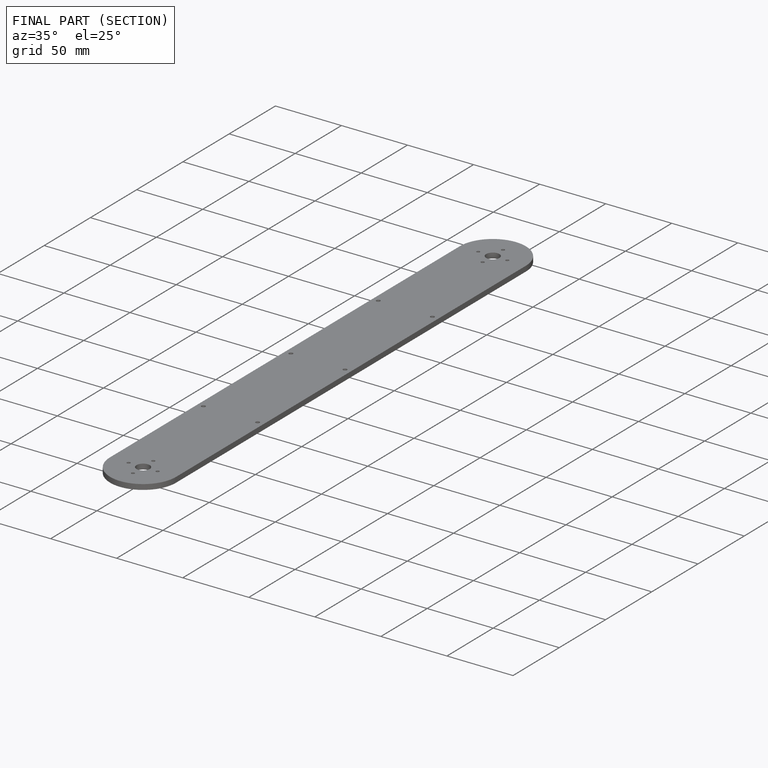
[diagram: finished part — half-section view (interior)]
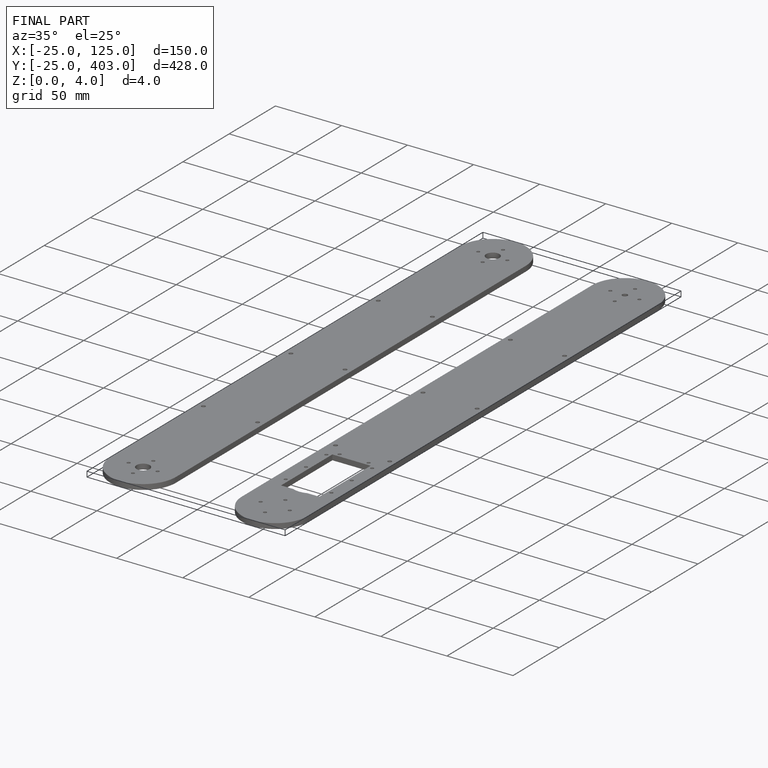
[diagram: finished part — iso view with bounding-box wireframe]
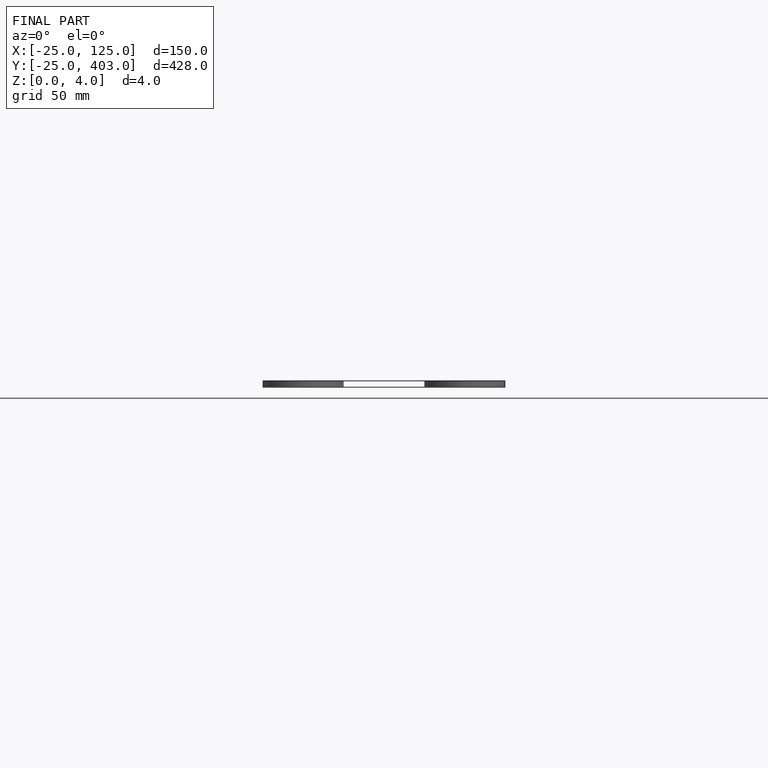
[diagram: finished part — front view with bounding-box wireframe]
